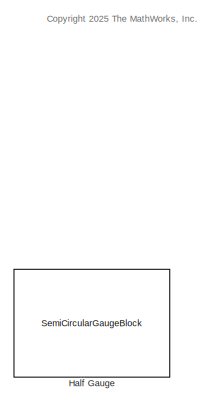
[diagram: root canvas - part 1/2, top right region]
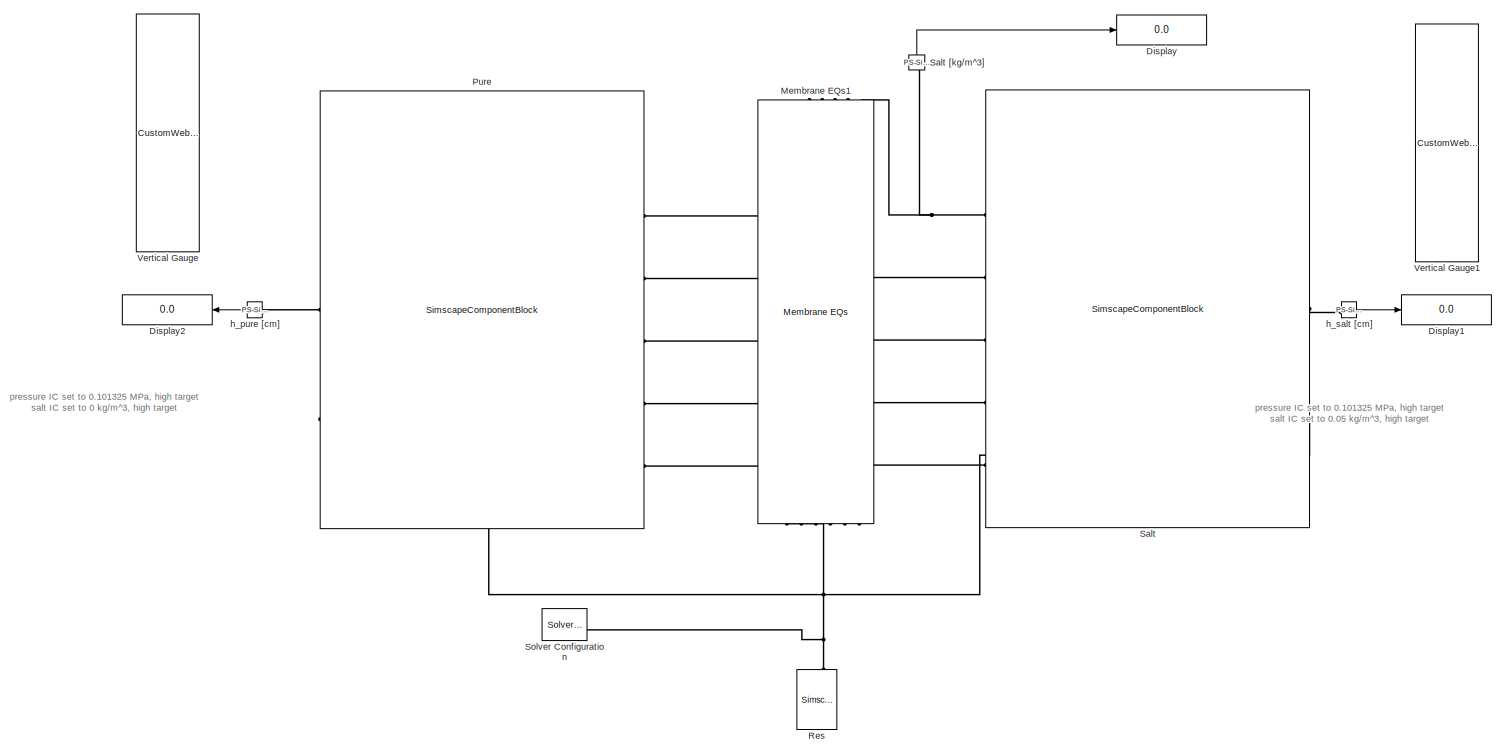
[diagram: root canvas - part 2/2, full width, bottom band]
MODEL slx_029c40e6100e
KIND model
CONFIG AbsTol = 1e-7
CONFIG EnableMultiTasking = off
CONFIG FixedStep = auto
CONFIG MaxStep = auto
CONFIG MinStep = auto
CONFIG RelTol = 1e-5
CONFIG SampleTimeConstraint = Unconstrained
CONFIG SolverName = VariableStepAuto
CONFIG StartTime = 0.0
CONFIG StopTime = 3600
BLOCK [Display] Display
  Decimation = 1
BLOCK [Display] Display1
  Decimation = 1
BLOCK [Display] Display2
  Decimation = 1
BLOCK [SemiCircularGaugeBlock] Half Gauge
  ScaleMax = 0.2
BLOCK [Reference] Membrane EQs1  REF=customization_lib/membranes/Membrane EQs
  NameLocation = right
  SourceBlock = customization_lib/membranes/Membrane EQs
  SourceProductName = Customization
  SourceType = Membrane EQs
BLOCK [SimscapeComponentBlock] Pure
  ClassName = simple_chamber
  ComponentPath = simple_chamber
  ComponentVariantNames = ["simple_chamber"]
  ComponentVariants = ["simple_chamber"]
  CopyFcn = simscape.sscblock.internal.componentBlockCallback(gcbh,'COPY')
  InternalSimscapePortConfiguration = {"Bottom":[{"id":"F","label":"F","type":"customization.solution.solution"}],"Left":[{"id":"x_o","label":"x_o","type":"output"},{"id":"T","label":"T","type":"output"},{"id":"p","label":"p","type":"output"},{"id":"mdot_w","label":"mdot_w","type":"input"},{"id":"mdot_s","label":"mdot_s","type":"input"}],"Right":[{"id":"h_o","label":"h_o","type":"output"}],"Top":[]}
  MaskType = Simple Chamber (SS)
  NameLocation = top
  PreCopyFcn = simscape.sscblock.internal.componentBlockCallback(gcbh,'PRECOPY')
  PreDeleteFcn = simscape.sscblock.internal.componentBlockCallback(gcbh,'PREDELETE')
  SchemaVersion = 1
  SourceFile = simple_chamber
  T0 = 293.15
  T0_conf = compiletime
  T0_unit = K
  a_xsec = 1
  a_xsec_conf = compiletime
  a_xsec_unit = cm^2
  h = 0.5
  h_nominal_specify = off
  h_nominal_unit = m
  h_nominal_value = 1
  h_priority = High
  h_specify = on
  h_unit = m
  p_atm = 1.01325
  p_atm_conf = compiletime
  p_atm_unit = bar
  x0 = 0
  x0_conf = compiletime
  x0_unit = kg/m^3
BLOCK [SimscapeComponentBlock] Res
  ClassName = reservoir
  ComponentPath = customization.solution.elements.reservoir
  ComponentVariantNames = ["reservoir"]
  ComponentVariants = ["customization.solution.elements.reservoir"]
  CopyFcn = simscape.sscblock.internal.componentBlockCallback(gcbh,'COPY')
  InternalSimscapePortConfiguration = {"Bottom":[],"Left":[{"id":"A","label":"A","type":"customization.solution.solution"}],"Right":[],"Top":[]}
  MaskType = Reservoir (SS)
  NameLocation = left
  PreCopyFcn = simscape.sscblock.internal.componentBlockCallback(gcbh,'PRECOPY')
  PreDeleteFcn = simscape.sscblock.internal.componentBlockCallback(gcbh,'PREDELETE')
  SchemaVersion = 1
  SourceFile = customization.solution.elements.reservoir
  area = pi
  area_conf = compiletime
  area_unit = cm^2
  pressure_spec = foundation.enum.pressure_spec.atmospheric
  pressure_spec_conf = compiletime
  pressure_spec_unit = 1
  reservoir_concentration = 0
  reservoir_concentration_conf = compiletime
  reservoir_concentration_unit = kg/m^3
  reservoir_pressure = 0.101325
  reservoir_pressure_conf = compiletime
  reservoir_pressure_unit = MPa
  reservoir_temperature = 293.15
  reservoir_temperature_conf = compiletime
  reservoir_temperature_unit = K
BLOCK [SimscapeComponentBlock] Salt
  ClassName = simple_chamber
  ComponentPath = simple_chamber
  ComponentVariantNames = ["simple_chamber"]
  ComponentVariants = ["simple_chamber"]
  CopyFcn = simscape.sscblock.internal.componentBlockCallback(gcbh,'COPY')
  InternalSimscapePortConfiguration = {"Bottom":[{"id":"F","label":"F","type":"customization.solution.solution"}],"Left":[{"id":"x_o","label":"x_o","type":"output"},{"id":"T","label":"T","type":"output"},{"id":"p","label":"p","type":"output"},{"id":"mdot_w","label":"mdot_w","type":"input"},{"id":"mdot_s","label":"mdot_s","type":"input"}],"Right":[{"id":"h_o","label":"h_o","type":"output"}],"Top":[]}
  MaskType = Simple Chamber (SS)
  NameLocation = top
  PreCopyFcn = simscape.sscblock.internal.componentBlockCallback(gcbh,'PRECOPY')
  PreDeleteFcn = simscape.sscblock.internal.componentBlockCallback(gcbh,'PREDELETE')
  SchemaVersion = 1
  SourceFile = simple_chamber
  T0 = 293.15
  T0_conf = compiletime
  T0_unit = K
  a_xsec = 1
  a_xsec_conf = compiletime
  a_xsec_unit = cm^2
  h = 0.5
  h_nominal_specify = off
  h_nominal_unit = m
  h_nominal_value = 1
  h_priority = High
  h_specify = on
  h_unit = m
  p_atm = 1.01325
  p_atm_conf = compiletime
  p_atm_unit = bar
  x0 = 0.05
  x0_conf = compiletime
  x0_unit = kg/m^3
BLOCK [Reference] Salt [kg//m^3]  REF=nesl_utility/PS-Simulink
Converter
  NameLocation = right
  SourceBlock = nesl_utility/PS-Simulink\nConverter
  SourceType = PS-Simulink\nConverter
BLOCK [Reference] Solver Configuration  REF=nesl_utility/Solver
Configuration
  SourceBlock = nesl_utility/Solver\nConfiguration
  SourceType = Solver\nConfiguration
BLOCK [CustomWebBlock] Vertical Gauge
  Configuration = {"components":[{"name":"LinearScaleComponent","settings":{"bounds":{"max":70,"min":0,"tickInterval":"auto"},"internalTickHeightScaleFactor":0.5,"labelColor":[0,0,0],"labelFont":{"font":"Arial","fontSize":12},"labelOffset":0.05,"labelTransparency":1,"needleImage":{"size":[21,75],"src":"data:image\/svg+xml;base64,PHN2ZyB4bWxucz0iaHR0cDovL3d3dy53My5vcmcvMjAwMC9zdmciIHhtbG5zOnhsaW5rPSJodHRwOi8vd3d3Lnc...<+4805ch>
  CustomBackgroundColor = {"color":[0.9019607843137255,0.9019607843137255,0.9019607843137255],"show":true}
  LabelPosition = Hide
  ShowInitialText = on
BLOCK [CustomWebBlock] Vertical Gauge1
  Configuration = {"components":[{"name":"LinearScaleComponent","settings":{"bounds":{"max":70,"min":0,"tickInterval":"auto"},"internalTickHeightScaleFactor":0.5,"labelColor":[0,0,0],"labelFont":{"font":"Arial","fontSize":12},"labelOffset":0.05,"labelTransparency":1,"needleImage":{"size":[21,75],"src":"data:image\/svg+xml;base64,PHN2ZyB4bWxucz0iaHR0cDovL3d3dy53My5vcmcvMjAwMC9zdmciIHhtbG5zOnhsaW5rPSJodHRwOi8vd3d3Lnc...<+4806ch>
  CustomBackgroundColor = {"color":[0.9019607843137255,0.9019607843137255,0.9019607843137255],"show":true}
  LabelPosition = Hide
  ShowInitialText = on
BLOCK [Reference] h_pure [cm]  REF=nesl_utility/PS-Simulink
Converter
  SourceBlock = nesl_utility/PS-Simulink\nConverter
  SourceType = PS-Simulink\nConverter
BLOCK [Reference] h_salt [cm]  REF=nesl_utility/PS-Simulink
Converter
  SourceBlock = nesl_utility/PS-Simulink\nConverter
  SourceType = PS-Simulink\nConverter
ANNOTATION (root): pressure IC set to 0.101325 MPa, high target salt IC set to 0 kg/m^3, high target
ANNOTATION (root): pressure IC set to 0.101325 MPa, high target salt IC set to 0.05 kg/m^3, high target
ANNOTATION (root): <copyright redacted>
LINE Salt [kg//m^3]:1 -> Display:1
LINE h_pure [cm]:1 -> Display2:1
LINE h_salt [cm]:1 -> Display1:1
PNET net1: Membrane EQs1:LConn1 -- Pure:RConn2 -- Res:LConn1 -- Salt:RConn2 -- Solver Configuration:RConn1
PLINE Membrane EQs1:LConn2 -- Pure:LConn5
PLINE Membrane EQs1:LConn3 -- Pure:LConn4
PLINE Membrane EQs1:LConn4 -- Pure:LConn3
PLINE Membrane EQs1:LConn5 -- Pure:LConn2
PLINE Membrane EQs1:LConn6 -- Pure:LConn1
PLINE Membrane EQs1:RConn3 -- Salt:LConn5
PLINE Membrane EQs1:RConn4 -- Salt:LConn4
PLINE Membrane EQs1:RConn5 -- Salt:LConn3
PLINE Membrane EQs1:RConn6 -- Salt:LConn2
PNET net2: Membrane EQs1:RConn7 -- Salt [kg//m^3]:LConn1 -- Salt:LConn1
PLINE Pure:RConn1 -- h_pure [cm]:LConn1
PLINE Salt:RConn1 -- h_salt [cm]:LConn1
note: PNET lines group multi-terminal physical nets as a canonical sorted terminal list (undirected conserving connections); 2-terminal nets keep the pairwise PLINE form
